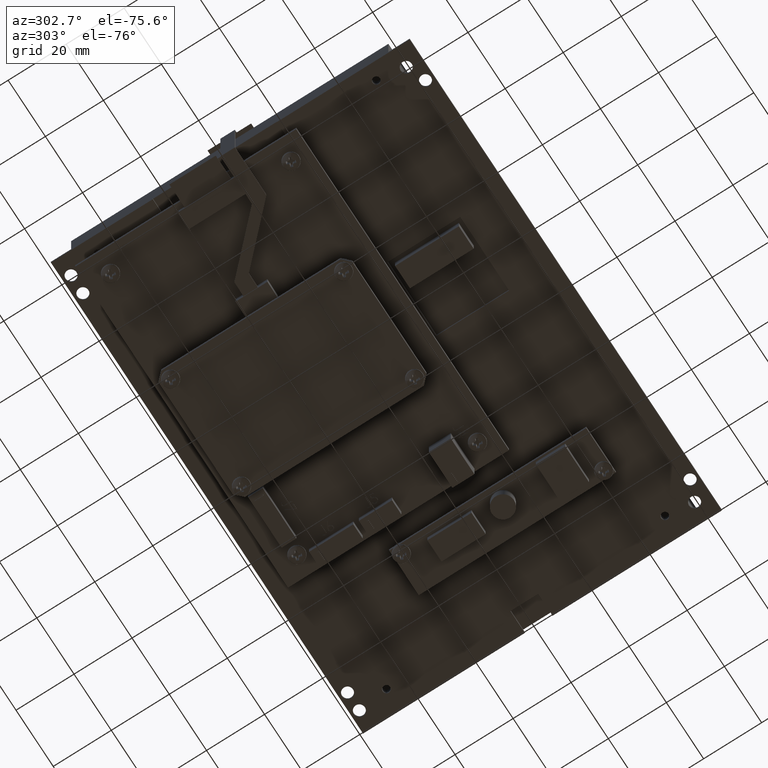
[diagram: clean part render]
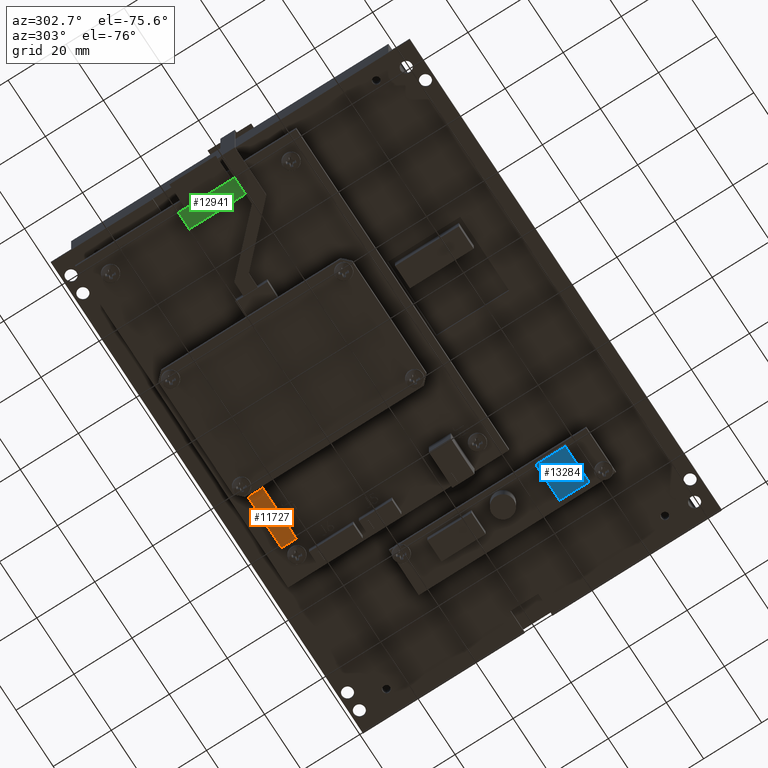
[diagram: same view with three faces highlighted in distinct colors, each labeled with its STEP entity id]
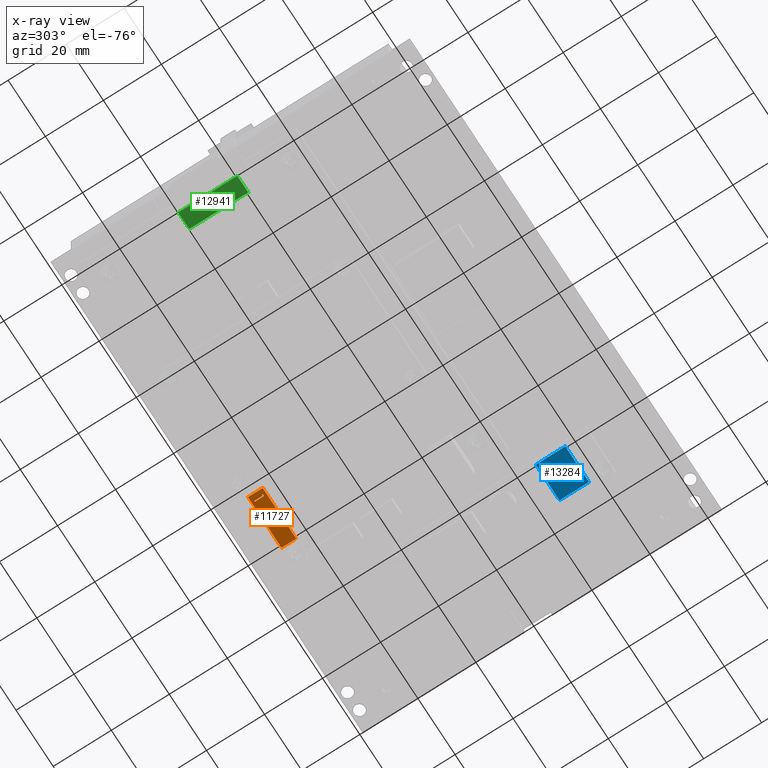
[diagram: x-ray of the same camera — body ghosted, the three highlighted faces saturated]
A machine part, auxiliary view with three faces highlighted in distinct colors.
The next image is the same camera in x-ray (body ghosted, the three faces saturated) — at least one of them is partly hidden behind the body in this view.
Their STEP definitions:

[orange] entity #11727 — the highlighted planar face has unit normal (0, 0, -1).
#10553 = AXIS2_PLACEMENT_3D ( 'NONE', #18093, #18105, #18106 ) ;
#10590 = VECTOR ( 'NONE', #18614, 39.37007874015748100 ) ;
#10592 = VECTOR ( 'NONE', #18637, 39.37007874015748100 ) ;
#10594 = VECTOR ( 'NONE', #18622, 39.37007874015748100 ) ;
#10596 = VECTOR ( 'NONE', #18628, 39.37007874015748100 ) ;
#10597 = VECTOR ( 'NONE', #18631, 39.37007874015748100 ) ;
#10598 = VECTOR ( 'NONE', #18635, 39.37007874015748100 ) ;
#10600 = VECTOR ( 'NONE', #18640, 39.37007874015748100 ) ;
#10601 = VECTOR ( 'NONE', #18643, 39.37007874015748100 ) ;
#10602 = VECTOR ( 'NONE', #18646, 39.37007874015748100 ) ;
#10603 = VECTOR ( 'NONE', #18649, 39.37007874015748100 ) ;
#11227 = VERTEX_POINT ( 'NONE', #17671 ) ;
#11285 = VERTEX_POINT ( 'NONE', #17678 ) ;
#11286 = VERTEX_POINT ( 'NONE', #17679 ) ;
#11288 = VERTEX_POINT ( 'NONE', #17681 ) ;
#11289 = VERTEX_POINT ( 'NONE', #17682 ) ;
#11290 = VERTEX_POINT ( 'NONE', #17683 ) ;
#11294 = VERTEX_POINT ( 'NONE', #17687 ) ;
#11295 = VERTEX_POINT ( 'NONE', #17688 ) ;
#11296 = VERTEX_POINT ( 'NONE', #17689 ) ;
#11297 = VERTEX_POINT ( 'NONE', #17690 ) ;
#11727 = ADVANCED_FACE ( 'NONE', ( #18102, #18098 ), #18103, .T. ) ;
#11776 = EDGE_CURVE ( 'NONE', #11288, #11285, #18611, .T. ) ;
#11779 = EDGE_CURVE ( 'NONE', #11285, #11286, #18620, .T. ) ;
#11781 = EDGE_CURVE ( 'NONE', #11286, #11227, #18626, .T. ) ;
#11782 = EDGE_CURVE ( 'NONE', #11227, #11288, #18629, .T. ) ;
#11783 = EDGE_CURVE ( 'NONE', #11289, #11290, #18632, .T. ) ;
#11784 = EDGE_CURVE ( 'NONE', #11290, #11294, #18596, .T. ) ;
#11785 = EDGE_CURVE ( 'NONE', #11294, #11295, #18638, .T. ) ;
#11786 = EDGE_CURVE ( 'NONE', #11295, #11296, #18641, .T. ) ;
#11787 = EDGE_CURVE ( 'NONE', #11296, #11297, #18644, .T. ) ;
#11788 = EDGE_CURVE ( 'NONE', #11297, #11289, #18647, .T. ) ;
#12168 = ORIENTED_EDGE ( 'NONE', *, *, #11783, .T. ) ;
#12169 = ORIENTED_EDGE ( 'NONE', *, *, #11784, .T. ) ;
#12170 = ORIENTED_EDGE ( 'NONE', *, *, #11785, .T. ) ;
#12171 = ORIENTED_EDGE ( 'NONE', *, *, #11786, .T. ) ;
#12172 = ORIENTED_EDGE ( 'NONE', *, *, #11787, .T. ) ;
#12173 = ORIENTED_EDGE ( 'NONE', *, *, #11788, .T. ) ;
#12174 = ORIENTED_EDGE ( 'NONE', *, *, #11776, .T. ) ;
#12175 = ORIENTED_EDGE ( 'NONE', *, *, #11779, .T. ) ;
#12176 = ORIENTED_EDGE ( 'NONE', *, *, #11781, .T. ) ;
#12177 = ORIENTED_EDGE ( 'NONE', *, *, #11782, .T. ) ;
#13427 = EDGE_LOOP ( 'NONE', ( #12168, #12169, #12170, #12171, #12172, #12173 ) ) ;
#13528 = EDGE_LOOP ( 'NONE', ( #12174, #12175, #12176, #12177 ) ) ;
#17671 = CARTESIAN_POINT ( 'NONE',  ( -1.784999999999995900, 0.1968582677165351100, -1.088999999999996000 ) ) ;
#17678 = CARTESIAN_POINT ( 'NONE',  ( -1.074999999999996800, 0.1968582677165351100, -1.288999999999995900 ) ) ;
#17679 = CARTESIAN_POINT ( 'NONE',  ( -1.784999999999994100, 0.1968582677165350600, -1.288999999999995700 ) ) ;
#17681 = CARTESIAN_POINT ( 'NONE',  ( -1.074999999999996200, 0.1968582677165347800, -1.088999999999996900 ) ) ;
#17682 = CARTESIAN_POINT ( 'NONE',  ( -1.132406696033869700, 0.1968582677165351100, -1.140888737415106400 ) ) ;
#17683 = CARTESIAN_POINT ( 'NONE',  ( -1.139743434815920600, 0.1968582677165351100, -1.128068224594593700 ) ) ;
#17687 = CARTESIAN_POINT ( 'NONE',  ( -1.162855413982587300, 0.1968582677165351100, -1.128068224594593700 ) ) ;
#17688 = CARTESIAN_POINT ( 'NONE',  ( -1.162855413982587700, 0.1968582677165348600, -1.253068224594591900 ) ) ;
#17689 = CARTESIAN_POINT ( 'NONE',  ( -1.151637465264639100, 0.1968582677165351100, -1.253068224594591900 ) ) ;
#17690 = CARTESIAN_POINT ( 'NONE',  ( -1.151637465264639100, 0.1968582677165353900, -1.140888737415106400 ) ) ;
#18093 = CARTESIAN_POINT ( 'NONE',  ( -1.074999999999996200, 0.1968582677165347800, -1.088999999999996900 ) ) ;
#18098 = FACE_OUTER_BOUND ( 'NONE', #13528, .T. ) ;
#18102 = FACE_BOUND ( 'NONE', #13427, .T. ) ;
#18103 = PLANE ( 'NONE',  #10553 ) ;
#18105 = DIRECTION ( 'NONE',  ( 4.930380657631331700E-031, 1.000000000000000000, 4.930380657631339100E-032 ) ) ;
#18106 = DIRECTION ( 'NONE',  ( -1.137174657178534300E-030, -4.930380657631339100E-032, 1.000000000000000000 ) ) ;
#18596 = LINE ( 'NONE', #18636, #10592 ) ;
#18611 = LINE ( 'NONE', #18613, #10590 ) ;
#18613 = CARTESIAN_POINT ( 'NONE',  ( -1.074999999999996800, 0.1968582677165351100, -1.288999999999995900 ) ) ;
#18614 = DIRECTION ( 'NONE',  ( 1.137174657178534300E-030, 4.930380657631339100E-032, -1.000000000000000000 ) ) ;
#18620 = LINE ( 'NONE', #18621, #10594 ) ;
#18621 = CARTESIAN_POINT ( 'NONE',  ( -1.784999999999994100, 0.1968582677165350600, -1.288999999999995700 ) ) ;
#18622 = DIRECTION ( 'NONE',  ( -1.000000000000000000, -1.972152263052532600E-031, 1.137174657178532600E-030 ) ) ;
#18626 = LINE ( 'NONE', #18627, #10596 ) ;
#18627 = CARTESIAN_POINT ( 'NONE',  ( -1.784999999999994100, 0.1968582677165350600, -1.288999999999995700 ) ) ;
#18628 = DIRECTION ( 'NONE',  ( -1.137174657178534300E-030, -4.930380657631339100E-032, 1.000000000000000000 ) ) ;
#18629 = LINE ( 'NONE', #18630, #10597 ) ;
#18630 = CARTESIAN_POINT ( 'NONE',  ( -1.784999999999995900, 0.1968582677165351100, -1.088999999999996000 ) ) ;
#18631 = DIRECTION ( 'NONE',  ( 1.000000000000000000, 1.972152263052532600E-031, -1.137174657178532600E-030 ) ) ;
#18632 = LINE ( 'NONE', #18634, #10598 ) ;
#18634 = CARTESIAN_POINT ( 'NONE',  ( -1.132406696033869700, 0.1968582677165351100, -1.140888737415106400 ) ) ;
#18635 = DIRECTION ( 'NONE',  ( -0.4966865118376904100, -1.540743955509793500E-031, 0.8679300138597050300 ) ) ;
#18636 = CARTESIAN_POINT ( 'NONE',  ( -1.139743434815920600, 0.1968582677165351100, -1.128068224594593700 ) ) ;
#18637 = DIRECTION ( 'NONE',  ( -1.000000000000000000, -1.972152263052532600E-031, 1.137174657178532600E-030 ) ) ;
#18638 = LINE ( 'NONE', #18639, #10600 ) ;
#18639 = CARTESIAN_POINT ( 'NONE',  ( -1.162855413982587300, 0.1968582677165351100, -1.128068224594593700 ) ) ;
#18640 = DIRECTION ( 'NONE',  ( 1.137174657178534300E-030, 4.930380657631339100E-032, -1.000000000000000000 ) ) ;
#18641 = LINE ( 'NONE', #18642, #10601 ) ;
#18642 = CARTESIAN_POINT ( 'NONE',  ( -1.162855413982587700, 0.1968582677165348600, -1.253068224594591900 ) ) ;
#18643 = DIRECTION ( 'NONE',  ( 1.000000000000000000, 1.972152263052532600E-031, -1.137174657178532600E-030 ) ) ;
#18644 = LINE ( 'NONE', #18645, #10602 ) ;
#18645 = CARTESIAN_POINT ( 'NONE',  ( -1.151637465264639100, 0.1968582677165351100, -1.253068224594591900 ) ) ;
#18646 = DIRECTION ( 'NONE',  ( -1.137174657178534300E-030, -4.930380657631339100E-032, 1.000000000000000000 ) ) ;
#18647 = LINE ( 'NONE', #18648, #10603 ) ;
#18648 = CARTESIAN_POINT ( 'NONE',  ( -1.151637465264639100, 0.1968582677165353900, -1.140888737415106400 ) ) ;
#18649 = DIRECTION ( 'NONE',  ( 1.000000000000000000, 1.972152263052532600E-031, -1.137174657178532600E-030 ) ) ;

[blue] entity #13284 — the highlighted planar face has unit normal (-0, -0, 1).
#970 = VECTOR ( 'NONE', #2410, 39.37007874015748100 ) ;
#973 = VECTOR ( 'NONE', #2418, 39.37007874015748100 ) ;
#975 = VECTOR ( 'NONE', #2424, 39.37007874015748100 ) ;
#976 = VECTOR ( 'NONE', #2427, 39.37007874015748100 ) ;
#2407 = LINE ( 'NONE', #2409, #970 ) ;
#2409 = CARTESIAN_POINT ( 'NONE',  ( 0.2124999999999999900, 0.1889999999999999700, -1.037500000000000100 ) ) ;
#2410 = DIRECTION ( 'NONE',  ( -1.813359933370429100E-032, 0.0000000000000000000, -1.000000000000000000 ) ) ;
#2416 = LINE ( 'NONE', #2417, #973 ) ;
#2417 = CARTESIAN_POINT ( 'NONE',  ( 0.2124999999999999900, 0.1889999999999999700, -1.037500000000000100 ) ) ;
#2418 = DIRECTION ( 'NONE',  ( -1.000000000000000000, 0.0000000000000000000, -1.813359933370429100E-032 ) ) ;
#2422 = LINE ( 'NONE', #2423, #975 ) ;
#2423 = CARTESIAN_POINT ( 'NONE',  ( -0.2874999999999998700, 0.1889999999999999700, -1.037500000000000100 ) ) ;
#2424 = DIRECTION ( 'NONE',  ( 1.813359933370429100E-032, 0.0000000000000000000, 1.000000000000000000 ) ) ;
#2425 = LINE ( 'NONE', #2426, #976 ) ;
#2426 = CARTESIAN_POINT ( 'NONE',  ( 0.2124999999999999900, 0.1890000000000000600, -0.6375000000000000700 ) ) ;
#2427 = DIRECTION ( 'NONE',  ( 1.000000000000000000, 0.0000000000000000000, 1.813359933370429100E-032 ) ) ;
#3394 = CARTESIAN_POINT ( 'NONE',  ( 0.2124999999999999900, 0.1890000000000000600, -0.6375000000000000700 ) ) ;
#3402 = FACE_OUTER_BOUND ( 'NONE', #13370, .T. ) ;
#3403 = PLANE ( 'NONE',  #4588 ) ;
#3405 = DIRECTION ( 'NONE',  ( 0.0000000000000000000, -1.000000000000000000, -0.0000000000000000000 ) ) ;
#3406 = DIRECTION ( 'NONE',  ( -1.813359933370429100E-032, 0.0000000000000000000, -1.000000000000000000 ) ) ;
#4588 = AXIS2_PLACEMENT_3D ( 'NONE', #3394, #3405, #3406 ) ;
#8684 = CARTESIAN_POINT ( 'NONE',  ( -0.2874999999999998700, 0.1889999999999999700, -1.037500000000000100 ) ) ;
#8692 = CARTESIAN_POINT ( 'NONE',  ( 0.2124999999999999900, 0.1890000000000000600, -0.6375000000000000700 ) ) ;
#9231 = CARTESIAN_POINT ( 'NONE',  ( 0.2124999999999999900, 0.1889999999999999700, -1.037500000000000100 ) ) ;
#9240 = CARTESIAN_POINT ( 'NONE',  ( -0.2874999999999998700, 0.1890000000000000600, -0.6375000000000000700 ) ) ;
#13086 = EDGE_CURVE ( 'NONE', #16312, #16340, #2407, .T. ) ;
#13089 = EDGE_CURVE ( 'NONE', #16340, #16304, #2416, .T. ) ;
#13091 = EDGE_CURVE ( 'NONE', #16304, #16349, #2422, .T. ) ;
#13092 = EDGE_CURVE ( 'NONE', #16349, #16312, #2425, .T. ) ;
#13284 = ADVANCED_FACE ( 'NONE', ( #3402 ), #3403, .F. ) ;
#13370 = EDGE_LOOP ( 'NONE', ( #14025, #14026, #14027, #14028 ) ) ;
#14025 = ORIENTED_EDGE ( 'NONE', *, *, #13086, .T. ) ;
#14026 = ORIENTED_EDGE ( 'NONE', *, *, #13089, .T. ) ;
#14027 = ORIENTED_EDGE ( 'NONE', *, *, #13091, .T. ) ;
#14028 = ORIENTED_EDGE ( 'NONE', *, *, #13092, .T. ) ;
#16304 = VERTEX_POINT ( 'NONE', #8684 ) ;
#16312 = VERTEX_POINT ( 'NONE', #8692 ) ;
#16340 = VERTEX_POINT ( 'NONE', #9231 ) ;
#16349 = VERTEX_POINT ( 'NONE', #9240 ) ;

[green] entity #12941 — the highlighted planar face has unit normal (-0, -0, 1).
#811 = AXIS2_PLACEMENT_3D ( 'NONE', #1713, #1727, #1728 ) ;
#1713 = CARTESIAN_POINT ( 'NONE',  ( 2.169999999999993700, 0.1629999999999993700, 0.6499999999999982500 ) ) ;
#1724 = FACE_OUTER_BOUND ( 'NONE', #11002, .T. ) ;
#1725 = PLANE ( 'NONE',  #811 ) ;
#1727 = DIRECTION ( 'NONE',  ( -4.930380657631331700E-031, -1.000000000000000000, -4.930380657631339100E-032 ) ) ;
#1728 = DIRECTION ( 'NONE',  ( 1.137174657178534300E-030, 4.930380657631339100E-032, -1.000000000000000000 ) ) ;
#10384 = VECTOR ( 'NONE', #17396, 39.37007874015748100 ) ;
#10472 = VECTOR ( 'NONE', #17741, 39.37007874015748100 ) ;
#10480 = VECTOR ( 'NONE', #17744, 39.37007874015748100 ) ;
#10490 = VECTOR ( 'NONE', #17735, 39.37007874015748100 ) ;
#10908 = EDGE_CURVE ( 'NONE', #11191, #11187, #17393, .T. ) ;
#11002 = EDGE_LOOP ( 'NONE', ( #11467, #11468, #11469, #11470 ) ) ;
#11187 = VERTEX_POINT ( 'NONE', #17631 ) ;
#11191 = VERTEX_POINT ( 'NONE', #17635 ) ;
#11200 = VERTEX_POINT ( 'NONE', #17644 ) ;
#11201 = VERTEX_POINT ( 'NONE', #17645 ) ;
#11467 = ORIENTED_EDGE ( 'NONE', *, *, #10908, .T. ) ;
#11468 = ORIENTED_EDGE ( 'NONE', *, *, #11630, .T. ) ;
#11469 = ORIENTED_EDGE ( 'NONE', *, *, #11632, .T. ) ;
#11470 = ORIENTED_EDGE ( 'NONE', *, *, #11633, .T. ) ;
#11630 = EDGE_CURVE ( 'NONE', #11187, #11201, #17733, .T. ) ;
#11632 = EDGE_CURVE ( 'NONE', #11201, #11200, #17739, .T. ) ;
#11633 = EDGE_CURVE ( 'NONE', #11200, #11191, #17742, .T. ) ;
#12941 = ADVANCED_FACE ( 'NONE', ( #1724 ), #1725, .F. ) ;
#17393 = LINE ( 'NONE', #17395, #10384 ) ;
#17395 = CARTESIAN_POINT ( 'NONE',  ( 2.169999999999996400, 0.1629999999999997800, -0.1499999999999994900 ) ) ;
#17396 = DIRECTION ( 'NONE',  ( 3.414809992080344300E-016, -1.232595164407834900E-031, -1.000000000000000000 ) ) ;
#17631 = CARTESIAN_POINT ( 'NONE',  ( 2.169999999999996400, 0.1629999999999997800, -0.1499999999999994900 ) ) ;
#17635 = CARTESIAN_POINT ( 'NONE',  ( 2.169999999999993700, 0.1629999999999993700, 0.6499999999999982500 ) ) ;
#17644 = CARTESIAN_POINT ( 'NONE',  ( 1.939999999999995700, 0.1629999999999992800, 0.6499999999999974700 ) ) ;
#17645 = CARTESIAN_POINT ( 'NONE',  ( 1.939999999999996800, 0.1629999999999992800, -0.1499999999999994900 ) ) ;
#17733 = LINE ( 'NONE', #17734, #10490 ) ;
#17734 = CARTESIAN_POINT ( 'NONE',  ( 2.169999999999996400, 0.1629999999999997800, -0.1499999999999994900 ) ) ;
#17735 = DIRECTION ( 'NONE',  ( -1.000000000000000000, -1.972152263052532600E-031, 1.137174657178532600E-030 ) ) ;
#17739 = LINE ( 'NONE', #17740, #10472 ) ;
#17740 = CARTESIAN_POINT ( 'NONE',  ( 1.939999999999996800, 0.1629999999999992800, -0.1499999999999994900 ) ) ;
#17741 = DIRECTION ( 'NONE',  ( -1.137174657178534300E-030, -4.930380657631339100E-032, 1.000000000000000000 ) ) ;
#17742 = LINE ( 'NONE', #17743, #10480 ) ;
#17743 = CARTESIAN_POINT ( 'NONE',  ( 2.169999999999993700, 0.1629999999999993700, 0.6499999999999982500 ) ) ;
#17744 = DIRECTION ( 'NONE',  ( 1.000000000000000000, 1.972152263052532600E-031, -1.137174657178532600E-030 ) ) ;